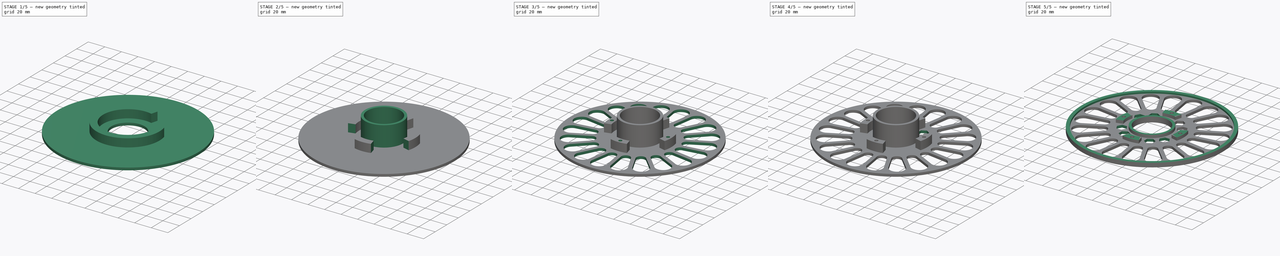
[diagram: build sequence overview — one tinted view per stage of 5, left to right]
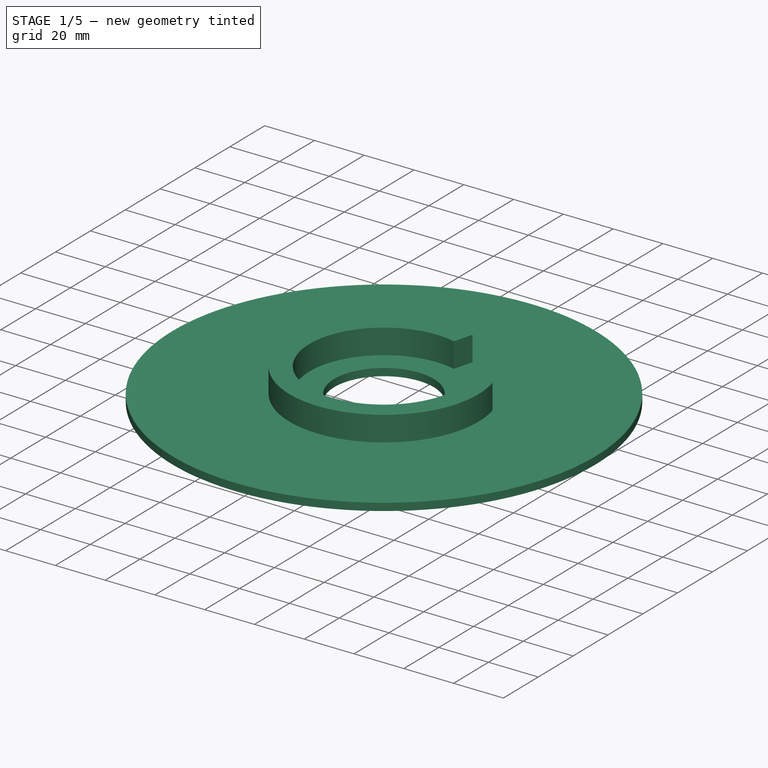
[diagram: stage 1 of 5 — iso view after this stage's code; geometry added in this stage tinted green]
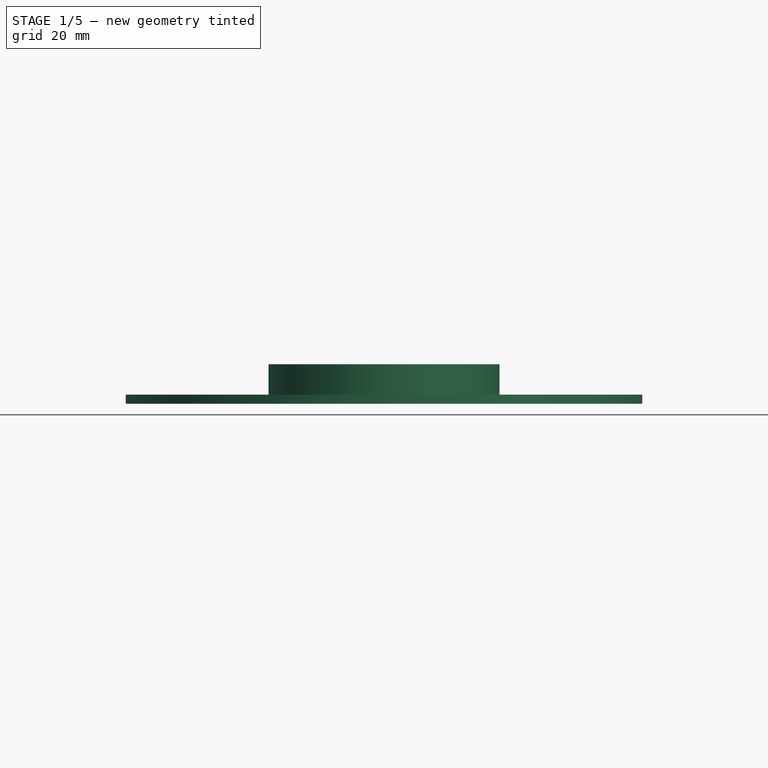
[diagram: stage 1 of 5 — front view after this stage's code; geometry added in this stage tinted green]
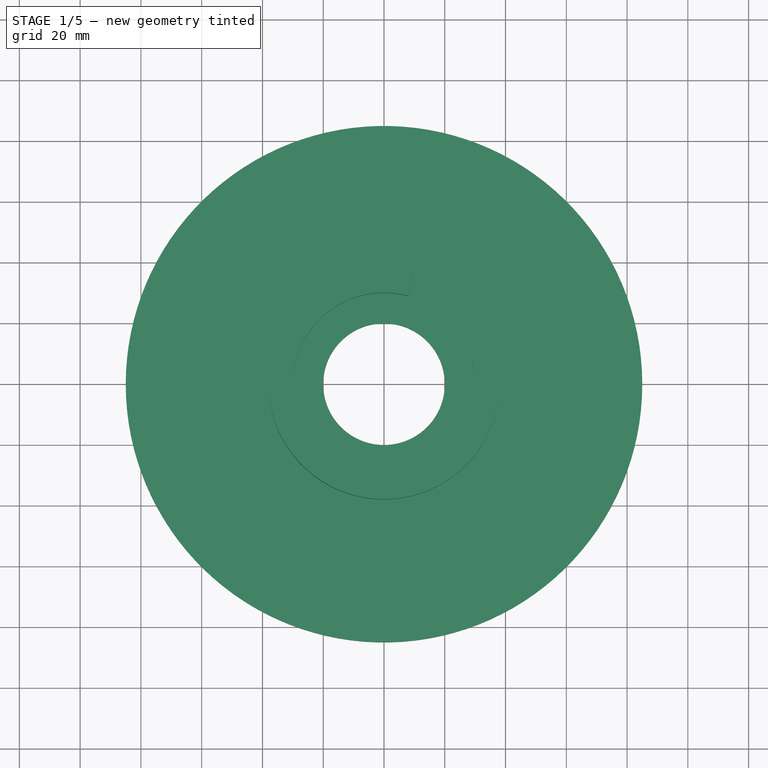
[diagram: stage 1 of 5 — top view after this stage's code; geometry added in this stage tinted green]
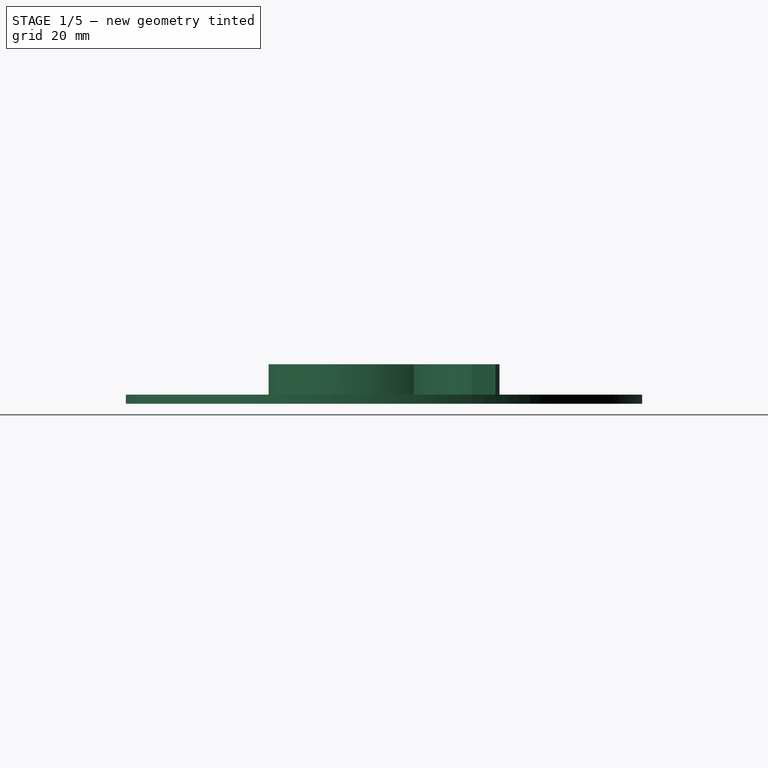
[diagram: stage 1 of 5 — right view after this stage's code; geometry added in this stage tinted green]
FCSTD DOCUMENT  (FreeCAD 0.16R6703 (Git))
Label: Spool Holder v3
License: FreeArt
LicenseURL: http://artlibre.org/licence/lal
objects: Sketcher::SketchObject×10, PartDesign::Pocket×6, PartDesign::PolarPattern×5, PartDesign::Pad×4
note: 35 computed .brp shape members not serialized (recipe doc carries the construction recipe); baked Part::Feature solids carry a one-line shape summary decoded from their .brp

FEATURE [Sketcher::SketchObject] Sketch
  sketch-geometry (2):
    g0: Circle CenterX=0 CenterY=0 CenterZ=0 NormalX=0 NormalY=0 NormalZ=1 Radius=20
    g1: Circle CenterX=0 CenterY=0 CenterZ=0 NormalX=0 NormalY=0 NormalZ=1 Radius=85
  constraints (3):
    c: Coincident(g1,g-1)
    c: Radius(g0) = 20
    c: Radius(g1) = 85
FEATURE [PartDesign::Pad] Pad
  Length = 3
  Length2 = 100
  Sketch = -> Sketch
  Type = 0
FEATURE [Sketcher::SketchObject] Sketch001
  Placement = pos=(0,0,3) rot=(0,0,1;0rad)
  Support = -> Pad [Face4]
  sketch-geometry (2):
    g0: Circle CenterX=0 CenterY=0 CenterZ=0 NormalX=0 NormalY=0 NormalZ=1 Radius=38
    g1: Circle CenterX=0 CenterY=0 CenterZ=0 NormalX=0 NormalY=0 NormalZ=1 Radius=30
  constraints (4):
    c: Coincident(g0,g-1)
    c: Radius(g0) = 38
    c: Coincident(g1,g-1)
    c: Radius(g1) = 30
FEATURE [PartDesign::Pad] Pad001
  Length = 10
  Length2 = 100
  Sketch = -> Sketch001
  Type = 0
FEATURE [Sketcher::SketchObject] Sketch002
  Placement = pos=(0,0,13) rot=(0,0,1;0rad)
  Support = -> Pad001 [Face7]
  sketch-geometry (3):
    g0: LineSegment StartX=0 StartY=0 StartZ=0 EndX=46.3644 EndY=12.4233 EndZ=0
    g1: LineSegment StartX=46.3644 StartY=12.4233 StartZ=0 EndX=12.4233 EndY=46.3644 EndZ=0
    g2: LineSegment StartX=12.4233 StartY=46.3644 StartZ=0 EndX=0 EndY=0 EndZ=0
  constraints (8):
    c: Coincident(g-1,g0)
    c: Coincident(g0,g1)
    c: Coincident(g1,g2)
    c: Coincident(g2,g0)
    c: Equal(g1,g0)
    c: Equal(g0,g2)
    c: Distance(g0) = 48
    c: Angle(g-1,g0) = 0.261799
FEATURE [PartDesign::Pocket] Pocket
  Length = 10
  Sketch = -> Sketch002
  Type = 0
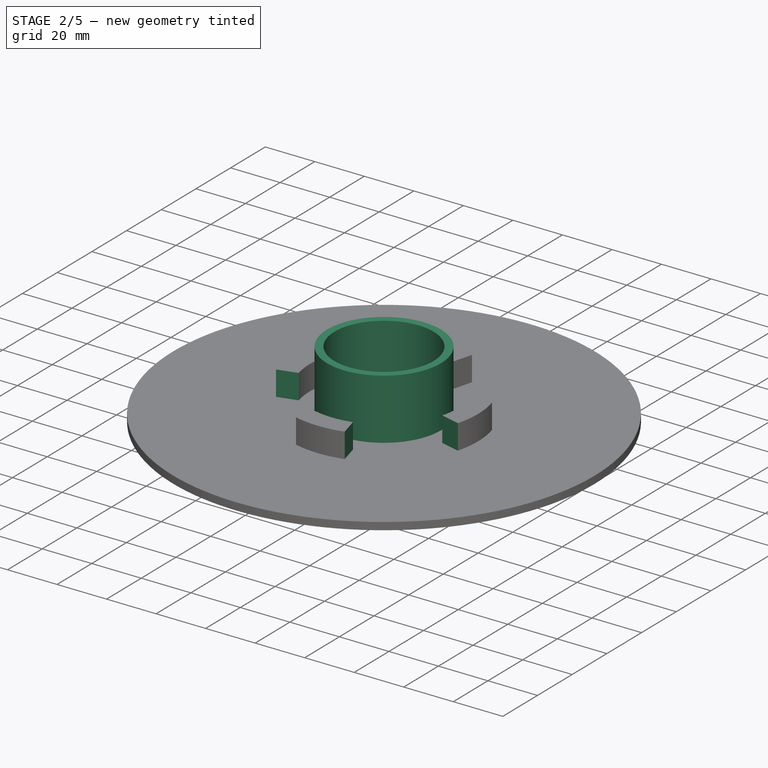
[diagram: stage 2 of 5 — iso view after this stage's code; geometry added in this stage tinted green]
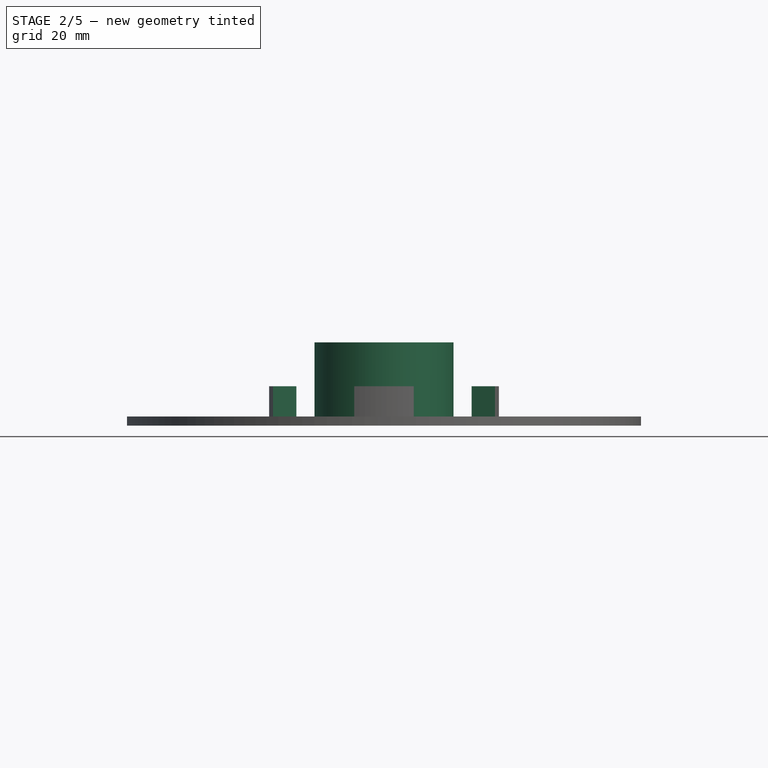
[diagram: stage 2 of 5 — front view after this stage's code; geometry added in this stage tinted green]
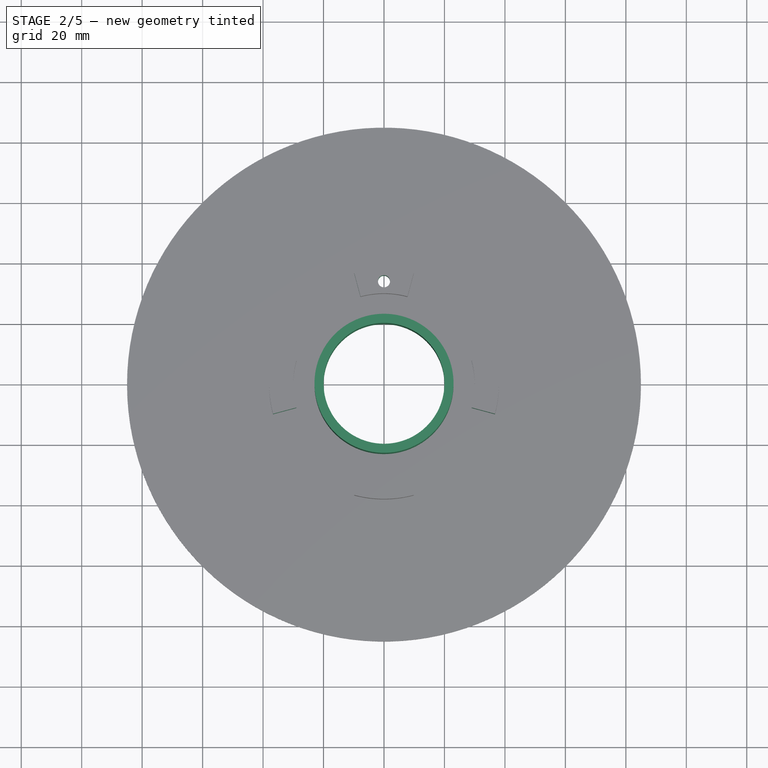
[diagram: stage 2 of 5 — top view after this stage's code; geometry added in this stage tinted green]
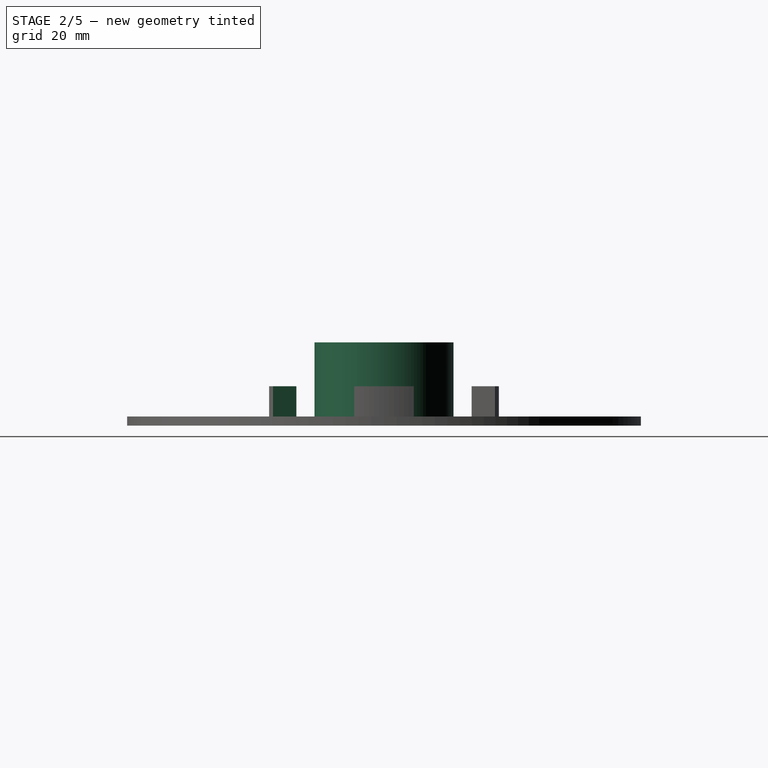
[diagram: stage 2 of 5 — right view after this stage's code; geometry added in this stage tinted green]
FEATURE [PartDesign::PolarPattern] PolarPattern
  Angle = 360
  Axis = -> Sketch002 [N_Axis]
  Occurrences = 4
  Originals = -> [Pocket]
FEATURE [Sketcher::SketchObject] Sketch003
  Placement = pos=(0,0,3) rot=(0,0,1;0rad)
  Support = -> PolarPattern [Face4]
  sketch-geometry (2):
    g0: Circle CenterX=0 CenterY=0 CenterZ=0 NormalX=0 NormalY=0 NormalZ=1 Radius=20
    g1: Circle CenterX=0 CenterY=0 CenterZ=0 NormalX=0 NormalY=0 NormalZ=1 Radius=23
  constraints (4):
    c: Coincident(g0,g-1)
    c: Coincident(g1,g-1)
    c: Radius(g0) = 20
    c: Radius(g1) = 23
FEATURE [PartDesign::Pad] Pad002
  Length = 24.5
  Length2 = 100
  Sketch = -> Sketch003
  Type = 0
FEATURE [Sketcher::SketchObject] Sketch004
  Placement = pos=(0,0,13) rot=(0,0,1;0rad)
  Support = -> Pad002 [Face24]
  sketch-geometry (1):
    g0: Circle CenterX=0 CenterY=34 CenterZ=0 NormalX=0 NormalY=0 NormalZ=1 Radius=2
  constraints (3):
    c: PointOnObject(g0,g-2)
    c: Radius(g0) = 2
    c: DistanceY(g-1,g0) = 34
FEATURE [PartDesign::Pocket] Pocket001
  Length = 5
  Sketch = -> Sketch004
  Type = 1
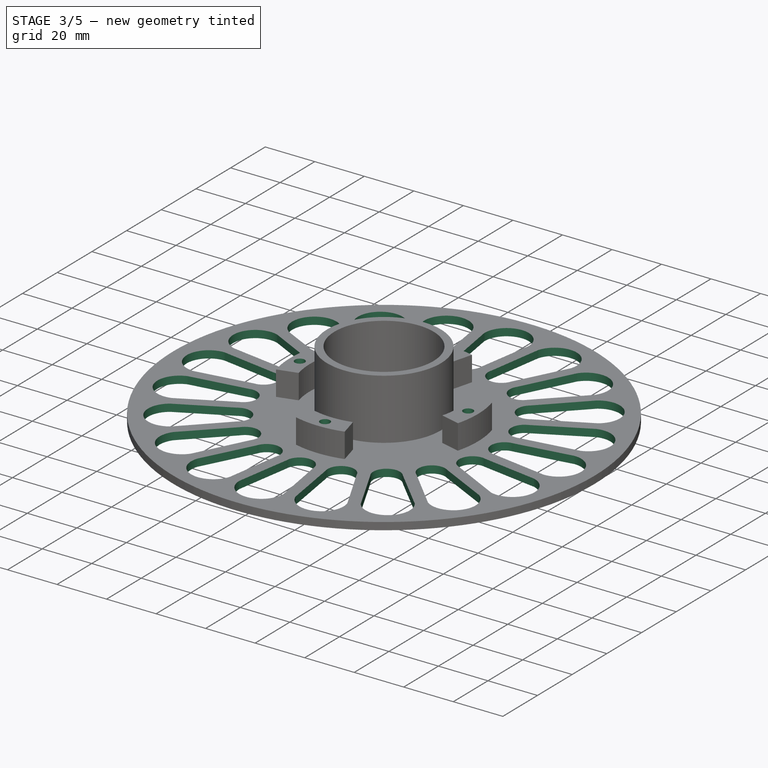
[diagram: stage 3 of 5 — iso view after this stage's code; geometry added in this stage tinted green]
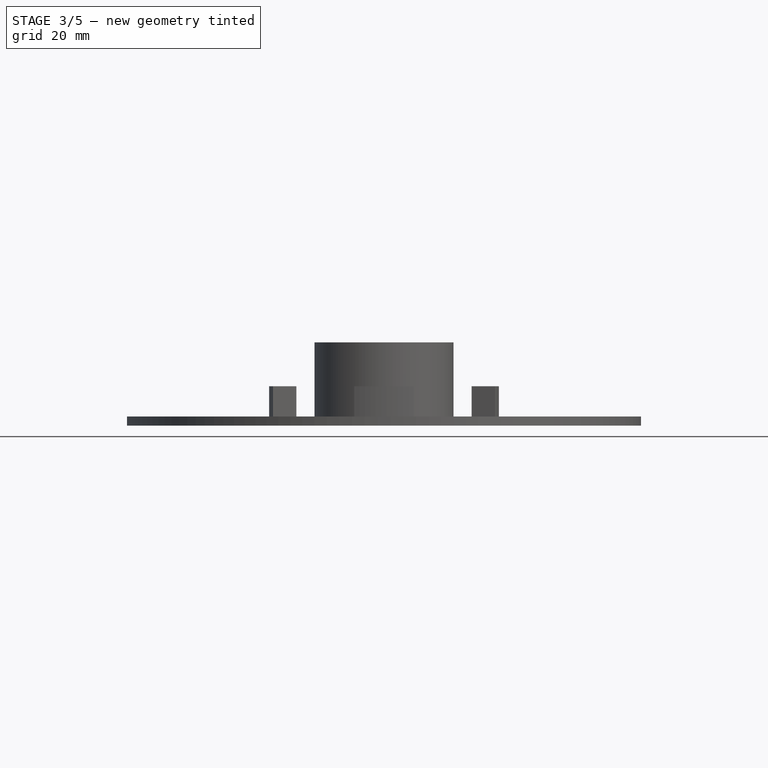
[diagram: stage 3 of 5 — front view after this stage's code; geometry added in this stage tinted green]
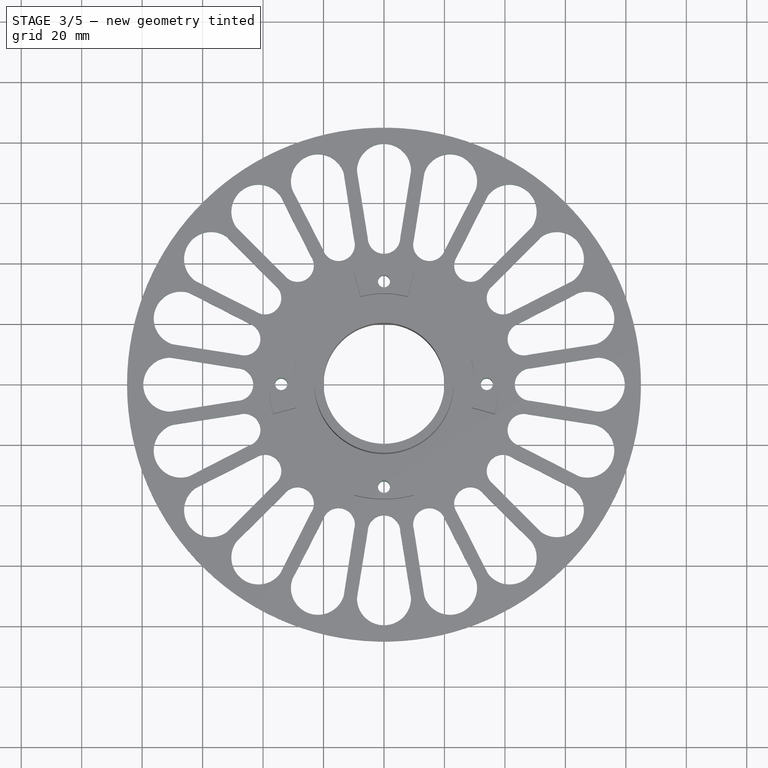
[diagram: stage 3 of 5 — top view after this stage's code; geometry added in this stage tinted green]
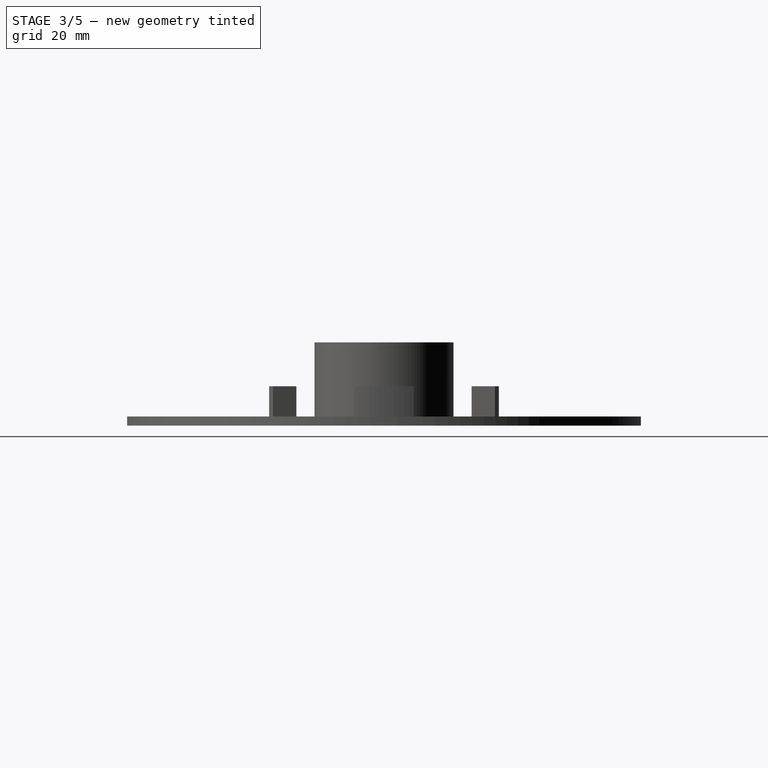
[diagram: stage 3 of 5 — right view after this stage's code; geometry added in this stage tinted green]
FEATURE [PartDesign::PolarPattern] PolarPattern001
  Angle = 360
  Axis = -> Sketch004 [N_Axis]
  Occurrences = 4
  Originals = -> [Pocket001]
FEATURE [Sketcher::SketchObject] Sketch005
  Placement = pos=(0,0,3) rot=(0,0,1;0rad)
  Support = -> PolarPattern001 [Face4]
  sketch-geometry (4):
    g0: LineSegment StartX=-5.38113 StartY=48.5098 StartZ=0 EndX=-8.93585 EndY=70.62 EndZ=0
    g1: LineSegment StartX=5.38113 StartY=48.5098 StartZ=0 EndX=8.93585 EndY=70.62 EndZ=0
    g2: ArcOfCircle CenterX=0 CenterY=70.6911 CenterZ=0 NormalX=0 NormalY=0 NormalZ=1 Radius=8.93614 StartAngle=6.27523 EndAngle=9.43274
    g3: ArcOfCircle CenterX=0 CenterY=48.6466 CenterZ=0 NormalX=0 NormalY=0 NormalZ=1 Radius=5.38287 StartAngle=3.167 EndAngle=6.25778
  constraints (6):
    c: Symmetric(g0,g1,g-2)
    c: Symmetric(g0,g1,g-2)
    c: Coincident(g2,g1)
    c: Coincident(g2,g0)
    c: Coincident(g3,g1)
    c: Coincident(g3,g0)
FEATURE [PartDesign::Pocket] Pocket002
  Length = 5
  Sketch = -> Sketch005
  Type = 1
FEATURE [PartDesign::PolarPattern] PolarPattern002
  Angle = 360
  Axis = -> Sketch005 [N_Axis]
  Occurrences = 20
  Originals = -> [Pocket002]
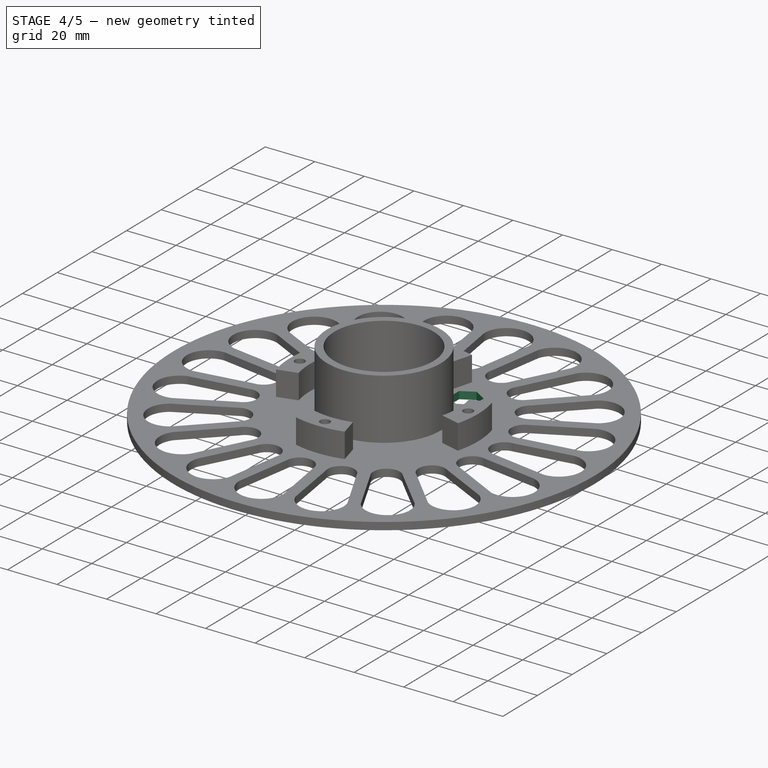
[diagram: stage 4 of 5 — iso view after this stage's code; geometry added in this stage tinted green]
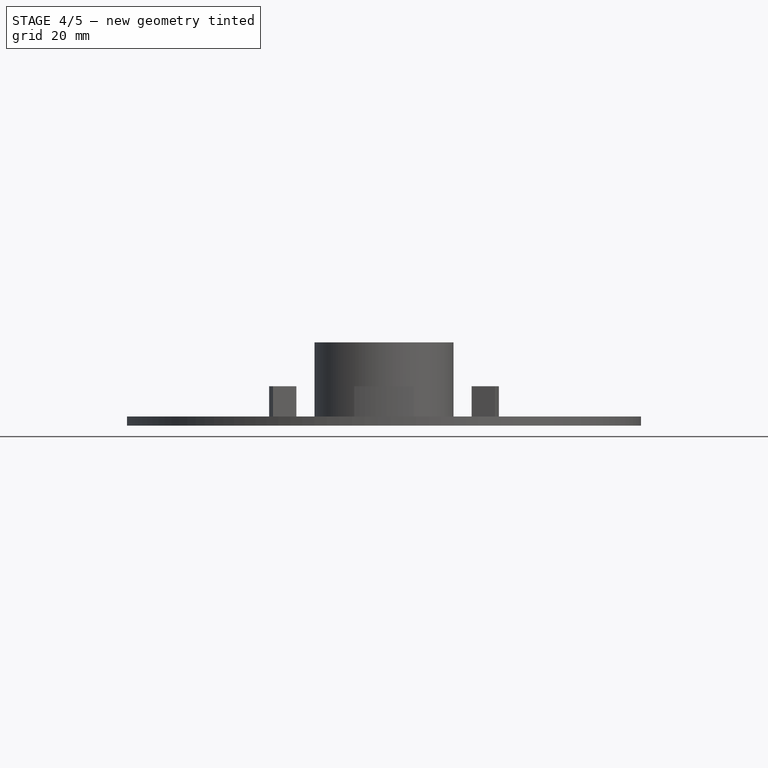
[diagram: stage 4 of 5 — front view after this stage's code; geometry added in this stage tinted green]
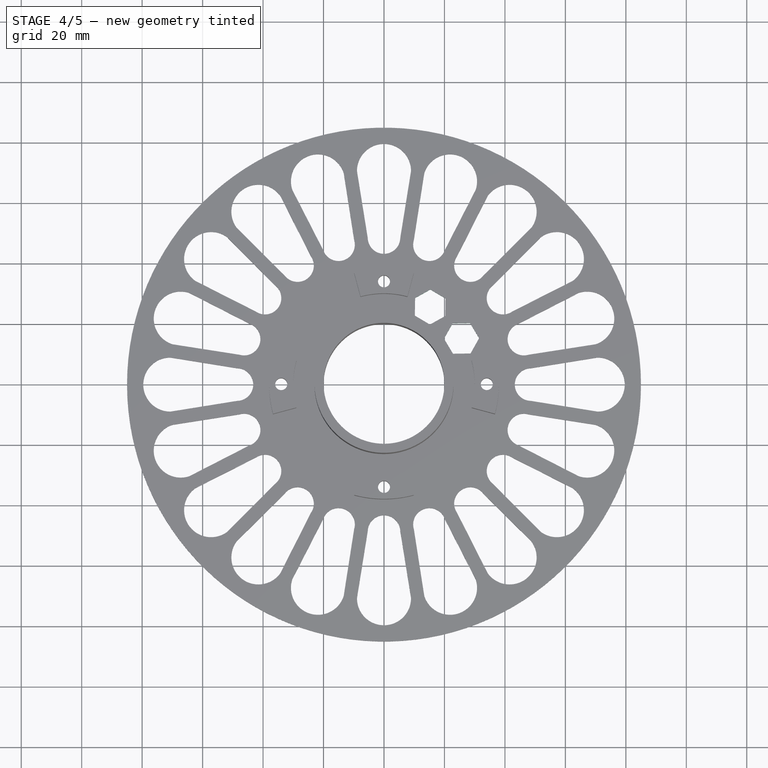
[diagram: stage 4 of 5 — top view after this stage's code; geometry added in this stage tinted green]
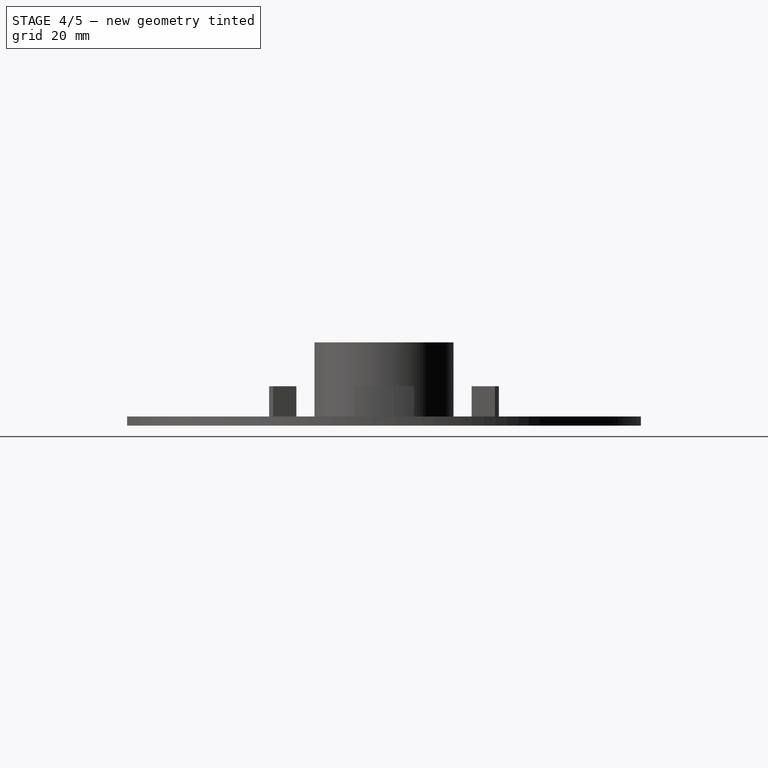
[diagram: stage 4 of 5 — right view after this stage's code; geometry added in this stage tinted green]
FEATURE [Sketcher::SketchObject] Sketch006
  Placement = pos=(0,0,0) rot=(1,0,0;3.14159rad)
  Support = -> PolarPattern002 [Face5]
  sketch-geometry (7):
    g0: LineSegment StartX=2 StartY=30.5359 StartZ=0 EndX=4 EndY=34 EndZ=0
    g1: LineSegment StartX=4 StartY=34 StartZ=0 EndX=2 EndY=37.4641 EndZ=0
    g2: LineSegment StartX=2 StartY=37.4641 StartZ=0 EndX=-2 EndY=37.4641 EndZ=0
    g3: LineSegment StartX=-2 StartY=37.4641 StartZ=0 EndX=-4 EndY=34 EndZ=0
    g4: LineSegment StartX=-4 StartY=34 StartZ=0 EndX=-2 EndY=30.5359 EndZ=0
    g5: LineSegment StartX=-2 StartY=30.5359 StartZ=0 EndX=2 EndY=30.5359 EndZ=0
    g6: Circle [constr] CenterX=0 CenterY=34 CenterZ=0 NormalX=0 NormalY=0 NormalZ=1 Radius=4
  constraints (17):
    c: Coincident(g0,g1)
    c: Coincident(g1,g2)
    c: Coincident(g2,g3)
    c: Coincident(g3,g4)
    c: Coincident(g4,g5)
    c: Coincident(g5,g0)
    c: Equal(g0, g1-g5) x5
    c: PointOnObject(g0,g6)
    c: PointOnObject(g1,g6)
    c: PointOnObject(g2,g6)
    c: PointOnObject(g3,g6)
    c: PointOnObject(g4,g6)
    c: PointOnObject(g5,g6)
    c: PointOnObject(g6,g-2)
    c: Radius(g6) = 4
    c: Parallel(g5,g-1)
    c: Distance(g-1,g6) = 34
FEATURE [PartDesign::Pocket] Pocket003
  Length = 3
  Sketch = -> Sketch006
  Type = 0
FEATURE [PartDesign::PolarPattern] PolarPattern003
  Angle = 360
  Axis = -> Sketch006 [N_Axis]
  Occurrences = 4
  Originals = -> [Pocket003]
FEATURE [Sketcher::SketchObject] Sketch007
  Placement = pos=(0,0,3) rot=(0,0,1;0rad)
  Support = -> PolarPattern003 [Face4]
  sketch-geometry (18):
    g0: Circle [constr] CenterX=0 CenterY=0 CenterZ=0 NormalX=0 NormalY=0 NormalZ=1 Radius=35
    g1: Circle [constr] CenterX=0 CenterY=0 CenterZ=0 NormalX=0 NormalY=0 NormalZ=1 Radius=25
    g2: Circle [constr] CenterX=-0.166505 CenterY=-0.00281441 CenterZ=0 NormalX=0 NormalY=0 NormalZ=1 Radius=30
    g3: LineSegment StartX=15.1925 StartY=19.8542 StartZ=0 EndX=20.2547 EndY=22.688 EndZ=0
    g4: LineSegment StartX=20.2547 StartY=22.688 StartZ=0 EndX=20.3317 EndY=28.489 EndZ=0
    g5: LineSegment StartX=20.3317 StartY=28.489 StartZ=0 EndX=15.3464 EndY=31.4561 EndZ=0
    g6: LineSegment StartX=15.3464 StartY=31.4561 StartZ=0 EndX=10.2842 EndY=28.6223 EndZ=0
    g7: LineSegment StartX=10.2842 StartY=28.6223 StartZ=0 EndX=10.2072 EndY=22.8213 EndZ=0
    g8: LineSegment StartX=10.2072 StartY=22.8213 StartZ=0 EndX=15.1925 EndY=19.8542 EndZ=0
    g9: Circle [constr] CenterX=15.2695 CenterY=25.6551 CenterZ=0 NormalX=0 NormalY=0 NormalZ=1 Radius=5.80147
    g10: LineSegment StartX=22.8213 StartY=10.2072 StartZ=0 EndX=28.6223 EndY=10.2842 EndZ=0
    g11: LineSegment StartX=28.6223 StartY=10.2842 StartZ=0 EndX=31.4561 EndY=15.3464 EndZ=0
    g12: LineSegment StartX=31.4561 StartY=15.3464 StartZ=0 EndX=28.489 EndY=20.3317 EndZ=0
    g13: LineSegment StartX=28.489 StartY=20.3317 StartZ=0 EndX=22.688 EndY=20.2547 EndZ=0
    g14: LineSegment StartX=22.688 StartY=20.2547 StartZ=0 EndX=19.8542 EndY=15.1925 EndZ=0
    g15: LineSegment StartX=19.8542 StartY=15.1925 StartZ=0 EndX=22.8213 EndY=10.2072 EndZ=0
    g16: Circle [constr] CenterX=25.6551 CenterY=15.2695 CenterZ=0 NormalX=0 NormalY=0 NormalZ=1 Radius=5.80147
    g17: LineSegment [constr] StartX=0 StartY=0 StartZ=0 EndX=36.1082 EndY=36.1082 EndZ=0
  constraints (41):
    c: Coincident(g1,g-1)
    c: Radius(g1) = 25
    c: Radius(g0) = 35
    c: Coincident(g0,g-1)
    c: Radius(g2) = 30
    c: Coincident(g3,g4)
    c: Coincident(g4,g5)
    c: Coincident(g5,g6)
    c: Coincident(g6,g7)
    c: Coincident(g7,g8)
    c: Coincident(g8,g3)
    c: Equal(g3, g4-g8) x5
    c: PointOnObject(g3,g9)
    c: PointOnObject(g4,g9)
    c: PointOnObject(g5,g9)
    c: PointOnObject(g6,g9)
    c: PointOnObject(g7,g9)
    c: PointOnObject(g8,g9)
    c: PointOnObject(g4,g0)
    c: PointOnObject(g5,g0)
    c: PointOnObject(g7,g1)
    c: Coincident(g10,g11)
    c: Coincident(g11,g12)
    c: Coincident(g12,g13)
    c: Coincident(g13,g14)
    c: Coincident(g14,g15)
    c: Coincident(g15,g10)
    c: Equal(g10, g11-g15) x5
    c: PointOnObject(g10,g16)
    c: PointOnObject(g11,g16)
    c: PointOnObject(g12,g16)
    c: PointOnObject(g13,g16)
    c: PointOnObject(g14,g16)
    c: PointOnObject(g15,g16)
    c: PointOnObject(g16,g2)
    c: PointOnObject(g15,g1)
    c: PointOnObject(g14,g1)
    c: PointOnObject(g12,g0)
    c: Coincident(g17,g-1)
    c: Angle(g-1,g17) = 0.785398
    c: Symmetric(g16,g9,g17)
FEATURE [PartDesign::Pocket] Pocket004
  Length = 5
  Sketch = -> Sketch007
  Type = 1
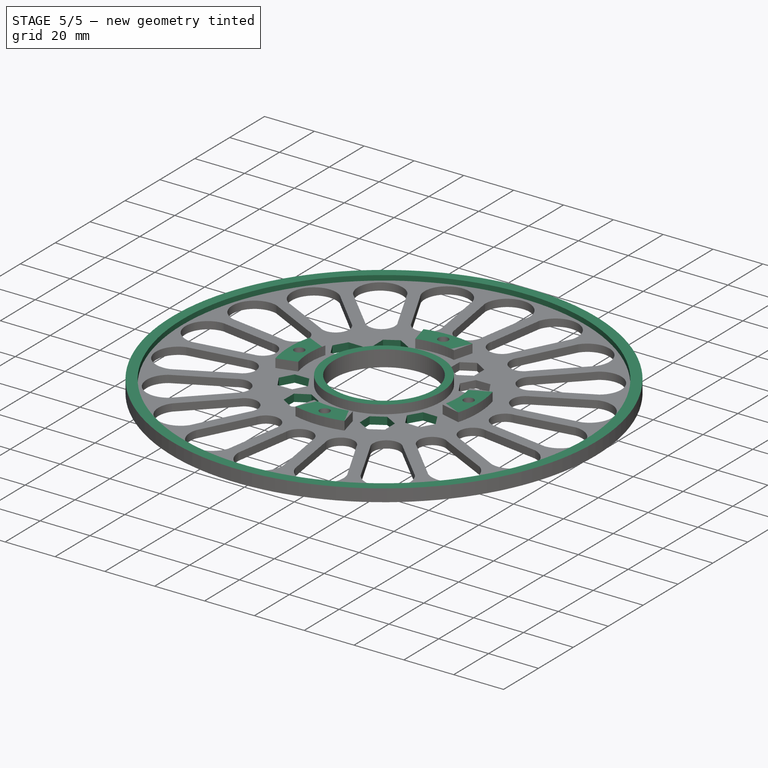
[diagram: stage 5 of 5 — iso view after this stage's code; geometry added in this stage tinted green]
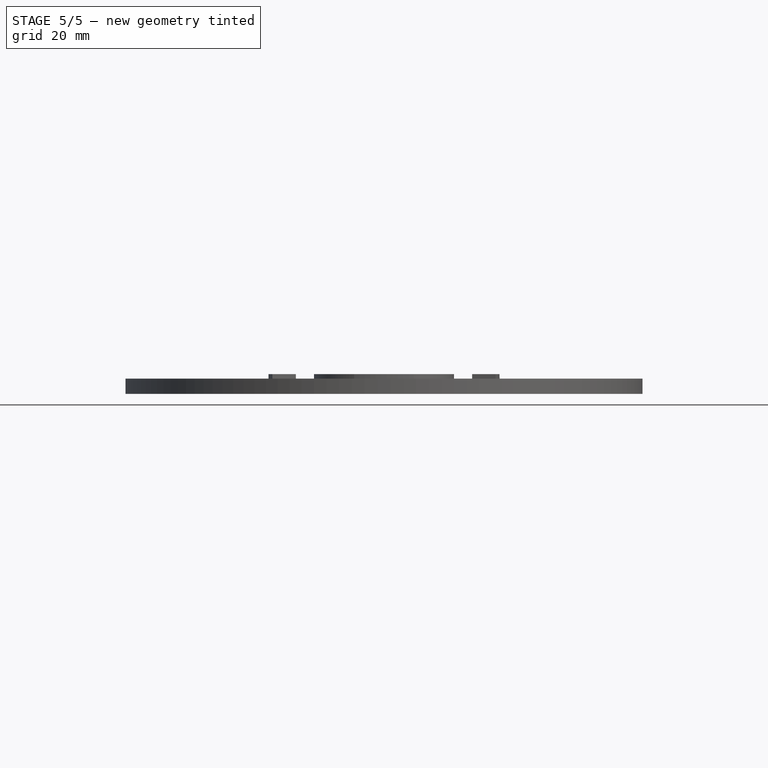
[diagram: stage 5 of 5 — front view after this stage's code; geometry added in this stage tinted green]
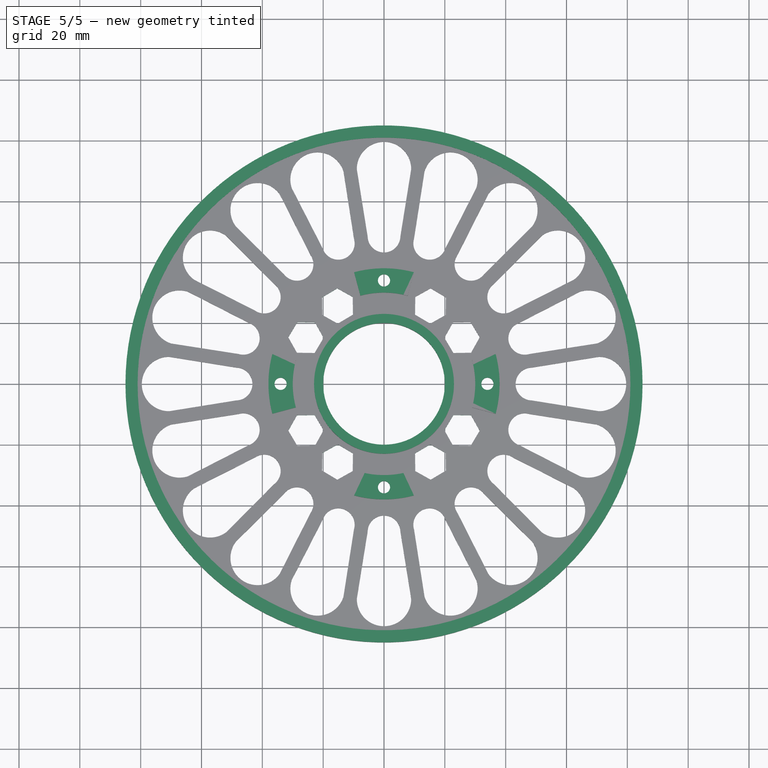
[diagram: stage 5 of 5 — top view after this stage's code; geometry added in this stage tinted green]
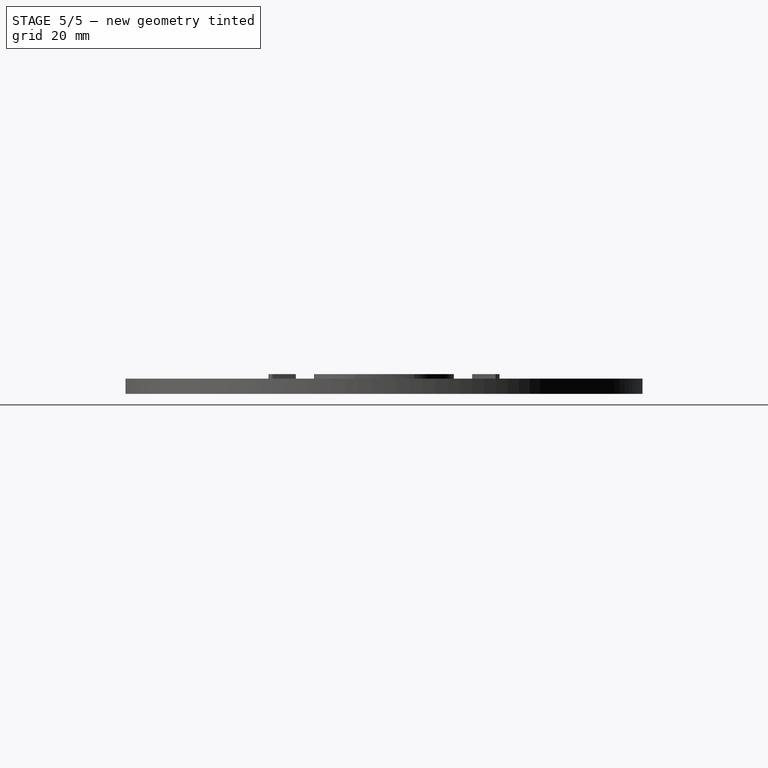
[diagram: stage 5 of 5 — right view after this stage's code; geometry added in this stage tinted green]
FEATURE [PartDesign::PolarPattern] PolarPattern004
  Angle = 360
  Axis = -> Sketch007 [N_Axis]
  Occurrences = 4
  Originals = -> [Pocket004]
FEATURE [Sketcher::SketchObject] Sketch008
  Placement = pos=(0,0,3) rot=(0,0,1;0rad)
  Support = -> PolarPattern004 [Face4]
  sketch-geometry (2):
    g0: Circle CenterX=0 CenterY=0 CenterZ=0 NormalX=0 NormalY=0 NormalZ=1 Radius=85
    g1: Circle CenterX=0 CenterY=0 CenterZ=0 NormalX=0 NormalY=0 NormalZ=1 Radius=81
  constraints (4):
    c: Coincident(g0,g-1)
    c: Coincident(g1,g-1)
    c: Radius(g0) = 85
    c: Radius(g1) = 81
FEATURE [PartDesign::Pad] Pad003
  Length = 2
  Length2 = 100
  Sketch = -> Sketch008
  Type = 0
FEATURE [Sketcher::SketchObject] Sketch009
  Placement = pos=(0,0,27.5) rot=(0,0,1;0rad)
  Support = -> Pad003 [Face177]
  sketch-geometry (4):
    g0: LineSegment StartX=-45.8352 StartY=48.8506 StartZ=0 EndX=48.4261 EndY=48.8506 EndZ=0
    g1: LineSegment StartX=48.4261 StartY=48.8506 StartZ=0 EndX=48.4261 EndY=-46.0189 EndZ=0
    g2: LineSegment StartX=48.4261 StartY=-46.0189 StartZ=0 EndX=-45.8352 EndY=-46.0189 EndZ=0
    g3: LineSegment StartX=-45.8352 StartY=-46.0189 StartZ=0 EndX=-45.8352 EndY=48.8506 EndZ=0
  constraints (8):
    c: Coincident(g0,g1)
    c: Coincident(g1,g2)
    c: Coincident(g2,g3)
    c: Coincident(g3,g0)
    c: Horizontal(g0)
    c: Horizontal(g2)
    c: Vertical(g1)
    c: Vertical(g3)
FEATURE [PartDesign::Pocket] Pocket005
  Length = 21
  Sketch = -> Sketch009
  Type = 0
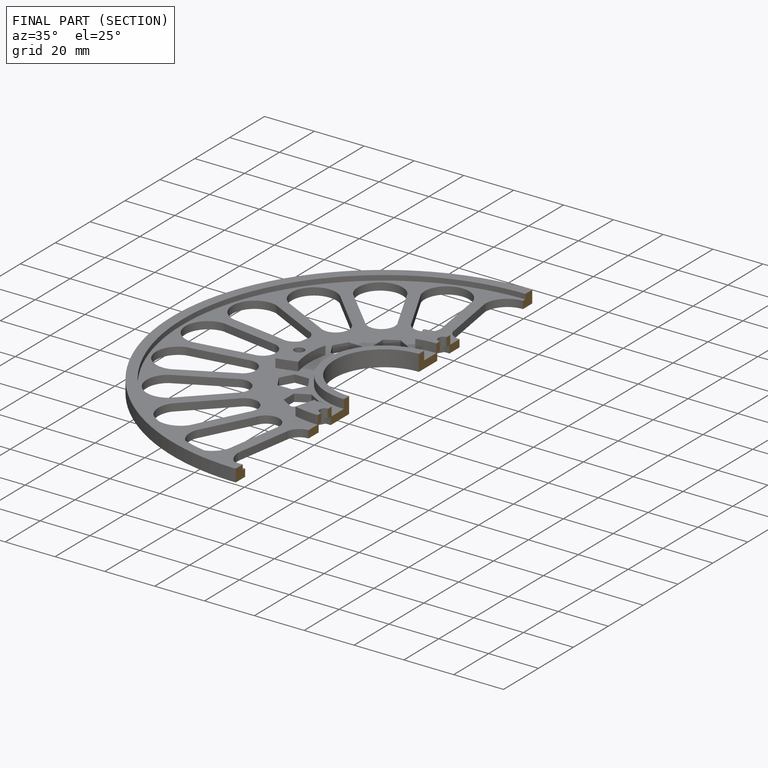
[diagram: finished part — half-section view (interior)]
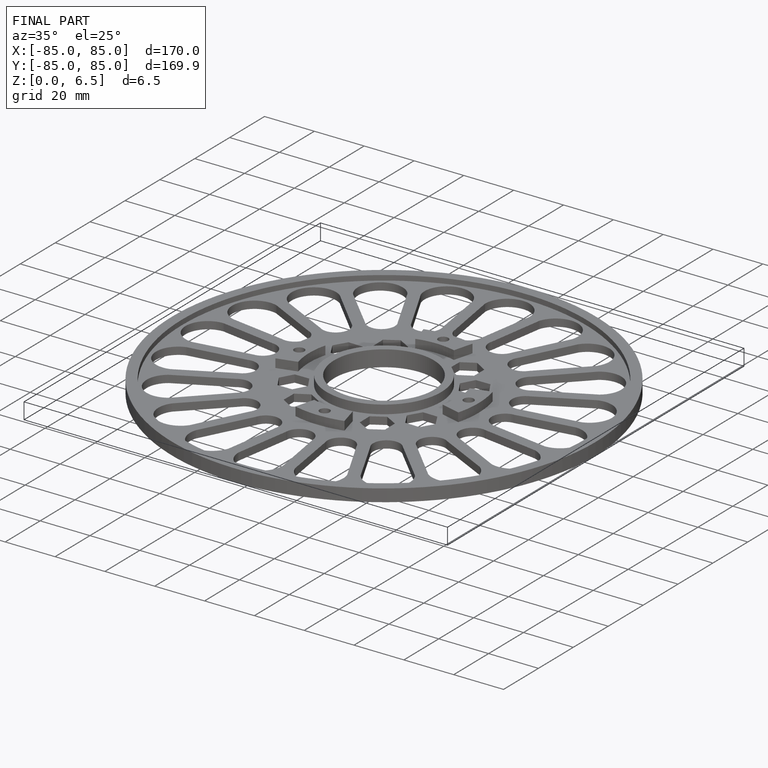
[diagram: finished part — iso view with bounding-box wireframe]
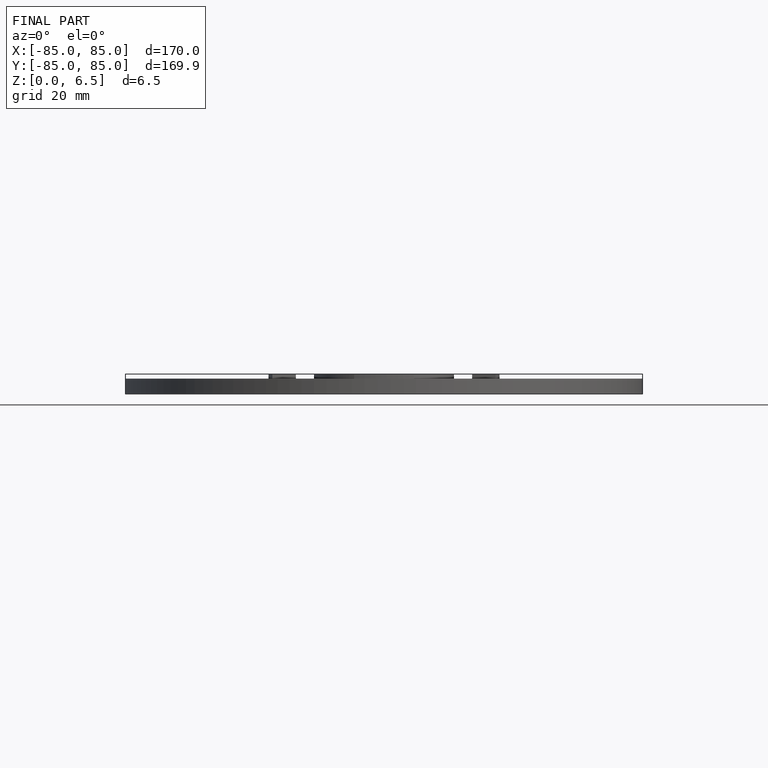
[diagram: finished part — front view with bounding-box wireframe]
